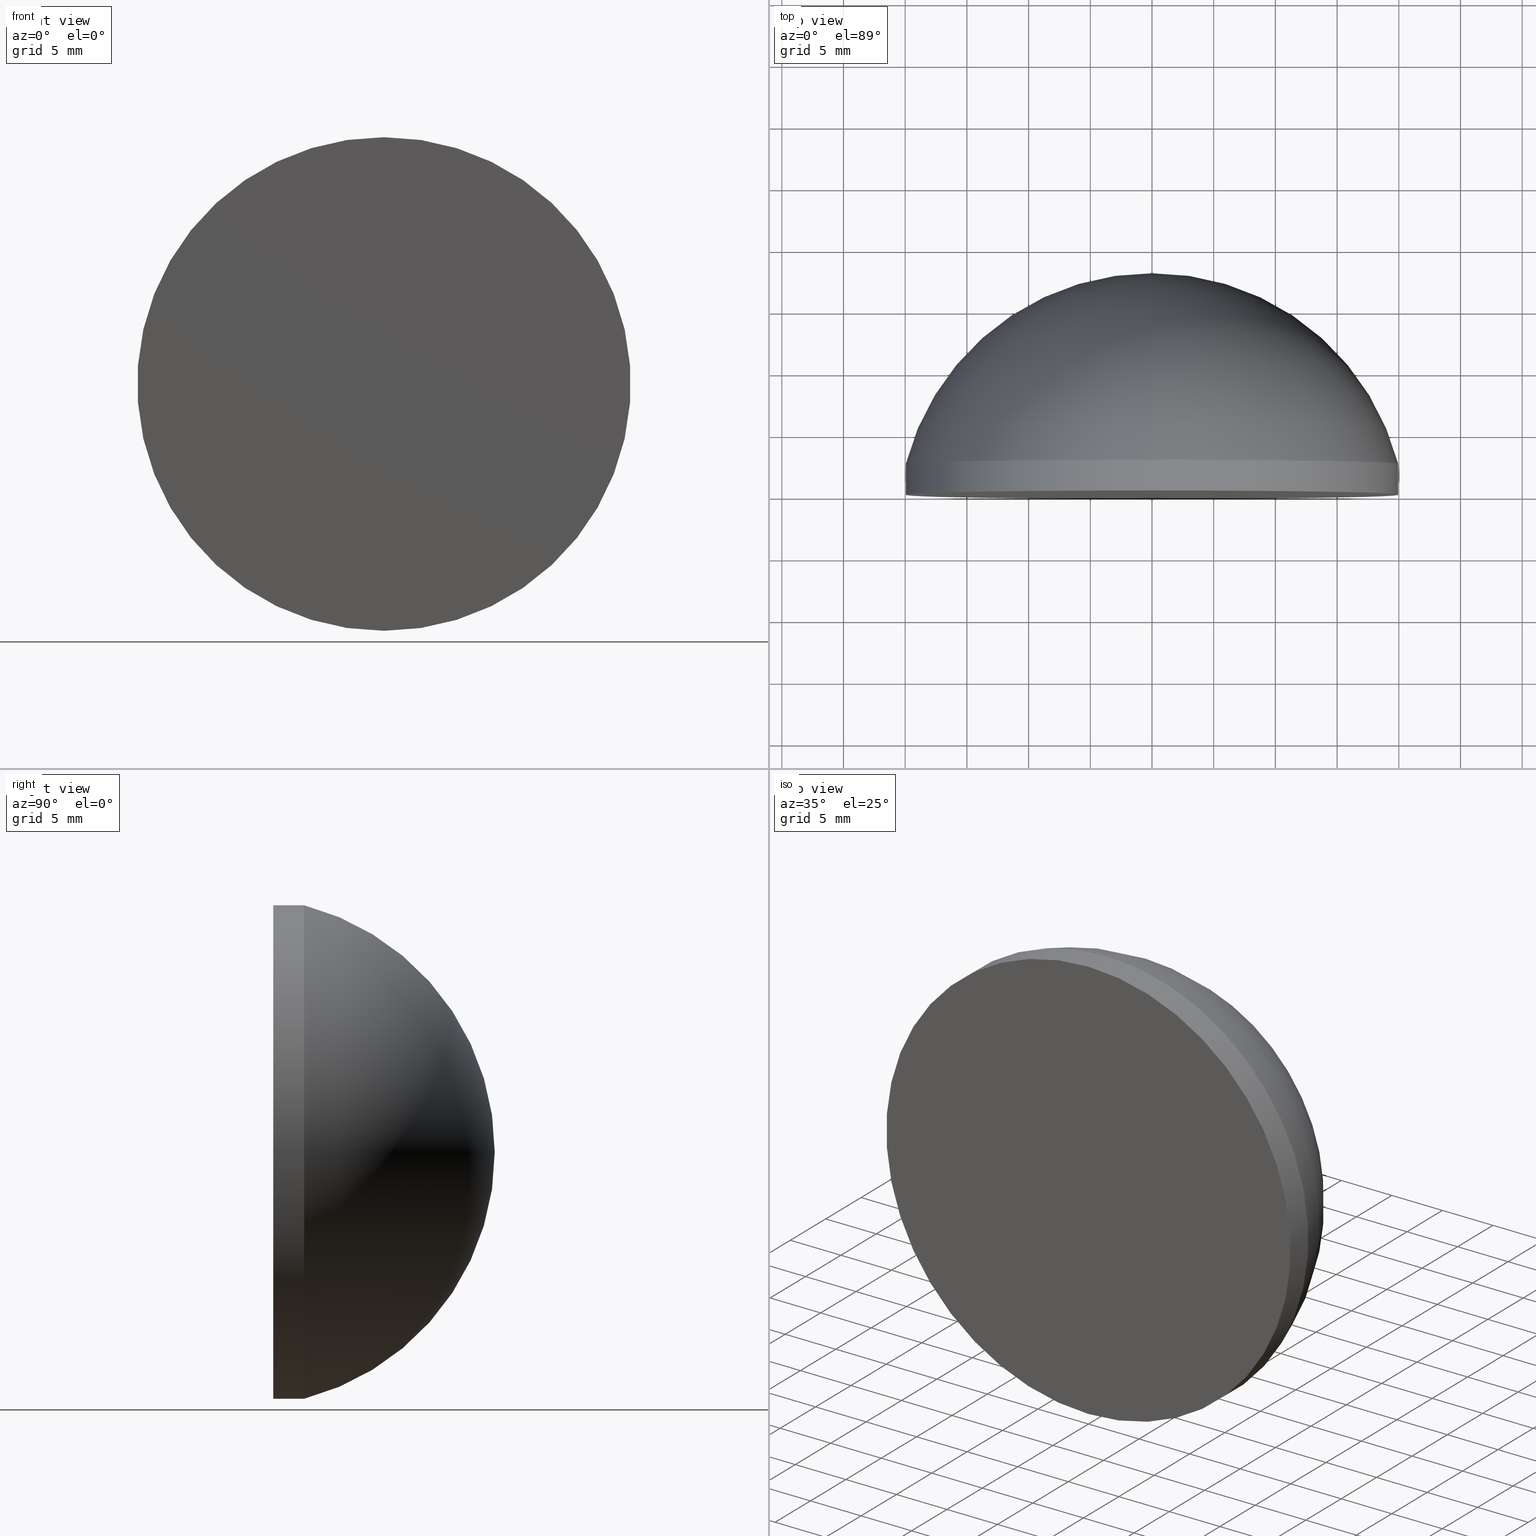
[diagram: canonical four-view strip — front | top / right | iso, engineering-drawing reading convention]
A machine part, canonical four-view strip (front | top / right | iso — engineering-drawing reading convention). The complete STEP part file that produces these views, byte-faithful:
ISO-10303-21;
HEADER;
FILE_DESCRIPTION (( 'STEP AP203' ),
    '1' );
FILE_NAME ('100581.STEP',
    '2024-05-10T01:21:47',
    ( '' ),
    ( '' ),
    'SwSTEP 2.0',
    'SolidWorks 2020',
    '' );
FILE_SCHEMA (( 'CONFIG_CONTROL_DESIGN' ));
ENDSEC;

DATA;
#1 =( NAMED_UNIT ( * ) PLANE_ANGLE_UNIT ( ) SI_UNIT ( $, .RADIAN. ) );
#2 = PERSON_AND_ORGANIZATION_ROLE ( 'design_owner' ) ;
#3 = CALENDAR_DATE ( 2024, 10, 5 ) ;
#4 = ORIENTED_EDGE ( 'NONE', *, *, #84, .F. ) ;
#5 = ORIENTED_EDGE ( 'NONE', *, *, #11, .T. ) ;
#6 = CLOSED_SHELL ( 'NONE', ( #48, #141, #71, #28, #118 ) ) ;
#7 = ORIENTED_EDGE ( 'NONE', *, *, #189, .F. ) ;
#8 = COORDINATED_UNIVERSAL_TIME_OFFSET ( 8, 0, .AHEAD. ) ;
#9 = MANIFOLD_SOLID_BREP ( '��ת1', #6 ) ;
#10 = EDGE_LOOP ( 'NONE', ( #135, #132, #56 ) ) ;
#11 = EDGE_CURVE ( 'NONE', #97, #150, #166, .T. ) ;
#12 = CARTESIAN_POINT ( 'NONE',  ( 0.000000000000000000, -3.469446951953614189E-15, 0.000000000000000000 ) ) ;
#13 = CC_DESIGN_PERSON_AND_ORGANIZATION_ASSIGNMENT ( #74, #196, ( #130 ) ) ;
#14 = DIRECTION ( 'NONE',  ( 0.000000000000000000, 0.000000000000000000, 1.000000000000000000 ) ) ;
#15 = DIRECTION ( 'NONE',  ( 0.000000000000000000, 0.000000000000000000, 1.000000000000000000 ) ) ;
#16 = DIRECTION ( 'NONE',  ( -0.000000000000000000, 1.000000000000000000, -0.000000000000000000 ) ) ;
#17 = LOCAL_TIME ( 9, 21, 47.00000000000000000, #113 ) ;
#18 = FACE_OUTER_BOUND ( 'NONE', #123, .T. ) ;
#19 = PRODUCT_DEFINITION_SHAPE ( 'NONE', 'NONE',  #66 ) ;
#20 = COORDINATED_UNIVERSAL_TIME_OFFSET ( 8, 0, .AHEAD. ) ;
#21 = LOCAL_TIME ( 9, 21, 47.00000000000000000, #67 ) ;
#22 = CARTESIAN_POINT ( 'NONE',  ( 0.000000000000000000, 0.000000000000000000, 0.000000000000000000 ) ) ;
#23 = CC_DESIGN_DATE_AND_TIME_ASSIGNMENT ( #110, #46, ( #75 ) ) ;
#24 = UNCERTAINTY_MEASURE_WITH_UNIT (LENGTH_MEASURE( 1.000000000000000082E-05 ), #152, 'distance_accuracy_value', 'NONE');
#25 = LOCAL_TIME ( 9, 21, 47.00000000000000000, #20 ) ;
#26 = DATE_AND_TIME ( #99, #37 ) ;
#27 = EDGE_CURVE ( 'NONE', #72, #93, #143, .T. ) ;
#28 = ADVANCED_FACE ( 'NONE', ( #198 ), #138, .T. ) ;
#29 = LOCAL_TIME ( 9, 21, 47.00000000000000000, #108 ) ;
#30 = CARTESIAN_POINT ( 'NONE',  ( 0.000000000000000000, 2.499999999999996447, 20.00000000000000355 ) ) ;
#31 = DIRECTION ( 'NONE',  ( -0.000000000000000000, 1.000000000000000000, -0.000000000000000000 ) ) ;
#32 = DIRECTION ( 'NONE',  ( 1.000000000000000000, 0.000000000000000000, 1.224646799147353207E-16 ) ) ;
#33 = APPROVAL_PERSON_ORGANIZATION ( #51, #142, #65 ) ;
#34 = VECTOR ( 'NONE', #61, 1000.000000000000000 ) ;
#35 = PERSON_AND_ORGANIZATION ( #180, #82 ) ;
#36 = DATE_AND_TIME ( #109, #21 ) ;
#37 = LOCAL_TIME ( 9, 21, 47.00000000000000000, #8 ) ;
#38 = PERSON_AND_ORGANIZATION_ROLE ( 'classification_officer' ) ;
#39 = ORIENTED_EDGE ( 'NONE', *, *, #101, .F. ) ;
#40 = APPROVAL_STATUS ( 'not_yet_approved' ) ;
#41 = CC_DESIGN_DATE_AND_TIME_ASSIGNMENT ( #36, #149, ( #66 ) ) ;
#42 = LINE ( 'NONE', #106, #129 ) ;
#43 = CYLINDRICAL_SURFACE ( 'NONE', #161, 20.00000000000000000 ) ;
#44 = DIRECTION ( 'NONE',  ( 0.000000000000000000, -1.000000000000000000, 0.000000000000000000 ) ) ;
#45 = DIRECTION ( 'NONE',  ( 0.000000000000000000, 0.000000000000000000, 1.000000000000000000 ) ) ;
#46 = DATE_TIME_ROLE ( 'classification_date' ) ;
#47 = PRODUCT ( '100581', '100581', '', ( #171 ) ) ;
#48 = ADVANCED_FACE ( 'NONE', ( #153 ), #43, .T. ) ;
#49 = APPROVAL_STATUS ( 'not_yet_approved' ) ;
#50 = DIRECTION ( 'NONE',  ( 1.000000000000000000, 0.000000000000000000, 0.000000000000000000 ) ) ;
#51 = PERSON_AND_ORGANIZATION ( #180, #82 ) ;
#52 = CC_DESIGN_APPROVAL ( #190, ( #66 ) ) ;
#53 = TOROIDAL_SURFACE ( 'NONE', #117, -1.249999708081983574E-05, 20.67000000000000171 ) ;
#54 = PERSON_AND_ORGANIZATION ( #180, #82 ) ;
#55 = CC_DESIGN_PERSON_AND_ORGANIZATION_ASSIGNMENT ( #86, #57, ( #130 ) ) ;
#56 = ORIENTED_EDGE ( 'NONE', *, *, #187, .F. ) ;
#57 = PERSON_AND_ORGANIZATION_ROLE ( 'design_supplier' ) ;
#58 = AXIS2_PLACEMENT_3D ( 'NONE', #122, #165, #168 ) ;
#59 = FACE_OUTER_BOUND ( 'NONE', #10, .T. ) ;
#60 = CARTESIAN_POINT ( 'NONE',  ( 0.000000000000000000, -3.469446951953614189E-15, 20.00000000000000000 ) ) ;
#61 = DIRECTION ( 'NONE',  ( -0.000000000000000000, 1.000000000000000000, -0.000000000000000000 ) ) ;
#62 = AXIS2_PLACEMENT_3D ( 'NONE', #124, #32, #164 ) ;
#63 = CARTESIAN_POINT ( 'NONE',  ( 0.000000000000000000, 17.94999999999999929, 0.000000000000000000 ) ) ;
#64 = DIRECTION ( 'NONE',  ( -0.000000000000000000, 1.000000000000000000, -0.000000000000000000 ) ) ;
#65 = APPROVAL_ROLE ( '' ) ;
#66 = PRODUCT_DEFINITION ( 'δ֪', '', #130, #96 ) ;
#67 = COORDINATED_UNIVERSAL_TIME_OFFSET ( 8, 0, .AHEAD. ) ;
#68 = APPROVAL_ROLE ( '' ) ;
#69 = CC_DESIGN_APPROVAL ( #142, ( #75 ) ) ;
#70 = CALENDAR_DATE ( 2024, 10, 5 ) ;
#71 = ADVANCED_FACE ( 'NONE', ( #104 ), #53, .T. ) ;
#72 = VERTEX_POINT ( 'NONE', #30 ) ;
#73 = ORIENTED_EDGE ( 'NONE', *, *, #187, .T. ) ;
#74 = PERSON_AND_ORGANIZATION ( #180, #82 ) ;
#75 = SECURITY_CLASSIFICATION ( '', '', #98 ) ;
#76 = DIRECTION ( 'NONE',  ( -0.000000000000000000, 1.000000000000000000, -0.000000000000000000 ) ) ;
#77 = CARTESIAN_POINT ( 'NONE',  ( 0.000000000000000000, 17.94999999999999929, 20.00000000000000000 ) ) ;
#78 = CARTESIAN_POINT ( 'NONE',  ( 2.449293598294706513E-15, 2.499999999999996447, -20.00000000000000355 ) ) ;
#79 = CARTESIAN_POINT ( 'NONE',  ( 2.449293598294706513E-15, -3.469446951953614189E-15, -20.00000000000000000 ) ) ;
#80 = PERSON_AND_ORGANIZATION_ROLE ( 'creator' ) ;
#81 = AXIS2_PLACEMENT_3D ( 'NONE', #90, #105, #45 ) ;
#82 = ORGANIZATION ( 'δָ��', 'δָ��', '' ) ;
#83 = AXIS2_PLACEMENT_3D ( 'NONE', #185, #91, #201 ) ;
#84 = EDGE_CURVE ( 'NONE', #93, #182, #147, .T. ) ;
#85 = ORIENTED_EDGE ( 'NONE', *, *, #101, .T. ) ;
#86 = PERSON_AND_ORGANIZATION ( #180, #82 ) ;
#87 = DIRECTION ( 'NONE',  ( 0.000000000000000000, 0.000000000000000000, 1.000000000000000000 ) ) ;
#88 = DIRECTION ( 'NONE',  ( 0.000000000000000000, -0.000000000000000000, -1.000000000000000000 ) ) ;
#89 = AXIS2_PLACEMENT_3D ( 'NONE', #100, #76, #87 ) ;
#90 = CARTESIAN_POINT ( 'NONE',  ( 0.000000000000000000, 17.94999999999999929, 0.000000000000000000 ) ) ;
#91 = DIRECTION ( 'NONE',  ( -0.000000000000000000, 1.000000000000000000, -0.000000000000000000 ) ) ;
#92 = CC_DESIGN_PERSON_AND_ORGANIZATION_ASSIGNMENT ( #35, #2, ( #47 ) ) ;
#93 = VERTEX_POINT ( 'NONE', #78 ) ;
#94 = CC_DESIGN_SECURITY_CLASSIFICATION ( #75, ( #130 ) ) ;
#95 = PERSON_AND_ORGANIZATION ( #180, #82 ) ;
#96 = DESIGN_CONTEXT ( 'detailed design', #176, 'design' ) ;
#97 = VERTEX_POINT ( 'NONE', #60 ) ;
#98 = SECURITY_CLASSIFICATION_LEVEL ( 'unclassified' ) ;
#99 = CALENDAR_DATE ( 2024, 10, 5 ) ;
#100 = CARTESIAN_POINT ( 'NONE',  ( 0.000000000000000000, 2.499999999999996891, 0.000000000000000000 ) ) ;
#101 = EDGE_CURVE ( 'NONE', #150, #97, #177, .T. ) ;
#102 = DIRECTION ( 'NONE',  ( -0.000000000000000000, 1.000000000000000000, -0.000000000000000000 ) ) ;
#103 = AXIS2_PLACEMENT_3D ( 'NONE', #199, #31, #15 ) ;
#104 = FACE_OUTER_BOUND ( 'NONE', #181, .T. ) ;
#105 = DIRECTION ( 'NONE',  ( -0.000000000000000000, 1.000000000000000000, -0.000000000000000000 ) ) ;
#106 = CARTESIAN_POINT ( 'NONE',  ( 2.449293598294706513E-15, 17.94999999999999929, -20.00000000000000000 ) ) ;
#107 = APPLICATION_PROTOCOL_DEFINITION ( 'international standard', 'config_control_design', 1994, #121 ) ;
#108 = COORDINATED_UNIVERSAL_TIME_OFFSET ( 8, 0, .AHEAD. ) ;
#109 = CALENDAR_DATE ( 2024, 10, 5 ) ;
#110 = DATE_AND_TIME ( #70, #17 ) ;
#111 = AXIS2_PLACEMENT_3D ( 'NONE', #12, #64, #200 ) ;
#112 = APPROVAL_PERSON_ORGANIZATION ( #95, #190, #68 ) ;
#113 = COORDINATED_UNIVERSAL_TIME_OFFSET ( 8, 0, .AHEAD. ) ;
#114 = ORIENTED_EDGE ( 'NONE', *, *, #178, .F. ) ;
#115 = ORIENTED_EDGE ( 'NONE', *, *, #27, .F. ) ;
#116 = APPROVAL_PERSON_ORGANIZATION ( #195, #158, #163 ) ;
#117 = AXIS2_PLACEMENT_3D ( 'NONE', #167, #16, #14 ) ;
#118 = ADVANCED_FACE ( 'NONE', ( #18 ), #186, .T. ) ;
#119 = CARTESIAN_POINT ( 'NONE',  ( 0.000000000000000000, 17.94999999999999929, 0.000000000000000000 ) ) ;
#120 = DIRECTION ( 'NONE',  ( -0.000000000000000000, 1.000000000000000000, -0.000000000000000000 ) ) ;
#121 = APPLICATION_CONTEXT ( 'configuration controlled 3d designs of mechanical parts and assemblies' ) ;
#122 = CARTESIAN_POINT ( 'NONE',  ( 0.000000000000000000, -2.719999999996218332, -1.249999708081983574E-05 ) ) ;
#123 = EDGE_LOOP ( 'NONE', ( #194, #85, #133, #7 ) ) ;
#124 = CARTESIAN_POINT ( 'NONE',  ( -1.530808141437727086E-21, -2.719999999996218332, 1.249999708081983574E-05 ) ) ;
#125 = APPROVAL_DATE_TIME ( #173, #142 ) ;
#126 =( GEOMETRIC_REPRESENTATION_CONTEXT ( 3 ) GLOBAL_UNCERTAINTY_ASSIGNED_CONTEXT ( ( #24 ) ) GLOBAL_UNIT_ASSIGNED_CONTEXT ( ( #152, #1, #174 ) ) REPRESENTATION_CONTEXT ( 'NONE', 'WORKASPACE' ) );
#127 = PERSON_AND_ORGANIZATION ( #180, #82 ) ;
#128 = ORIENTED_EDGE ( 'NONE', *, *, #189, .T. ) ;
#129 = VECTOR ( 'NONE', #102, 1000.000000000000000 ) ;
#130 = PRODUCT_DEFINITION_FORMATION_WITH_SPECIFIED_SOURCE ( '�κ�', '', #47, .NOT_KNOWN. ) ;
#131 = ADVANCED_BREP_SHAPE_REPRESENTATION ( '100581', ( #9, #183 ), #126 ) ;
#132 = ORIENTED_EDGE ( 'NONE', *, *, #84, .T. ) ;
#133 = ORIENTED_EDGE ( 'NONE', *, *, #178, .T. ) ;
#134 = APPROVAL_DATE_TIME ( #26, #158 ) ;
#135 = ORIENTED_EDGE ( 'NONE', *, *, #27, .T. ) ;
#136 = CARTESIAN_POINT ( 'NONE',  ( 0.000000000000000000, -1.224646799147353256E-15, 0.000000000000000000 ) ) ;
#137 = CC_DESIGN_APPROVAL ( #158, ( #130 ) ) ;
#138 = PLANE ( 'NONE',  #184 ) ;
#139 = LINE ( 'NONE', #77, #34 ) ;
#140 = CALENDAR_DATE ( 2024, 10, 5 ) ;
#141 = ADVANCED_FACE ( 'NONE', ( #59 ), #192, .T. ) ;
#142 = APPROVAL ( #145, 'δָ��' ) ;
#143 = CIRCLE ( 'NONE', #89, 20.00000000000000000 ) ;
#144 = DIRECTION ( 'NONE',  ( 0.000000000000000000, 0.000000000000000000, 1.000000000000000000 ) ) ;
#145 = APPROVAL_STATUS ( 'not_yet_approved' ) ;
#146 = CIRCLE ( 'NONE', #58, 20.67000000000000171 ) ;
#147 = CIRCLE ( 'NONE', #62, 20.67000000000000171 ) ;
#148 = ORIENTED_EDGE ( 'NONE', *, *, #156, .T. ) ;
#149 = DATE_TIME_ROLE ( 'creation_date' ) ;
#150 = VERTEX_POINT ( 'NONE', #79 ) ;
#151 = PRODUCT_RELATED_PRODUCT_CATEGORY ( 'detail', '', ( #47 ) ) ;
#152 =( LENGTH_UNIT ( ) NAMED_UNIT ( * ) SI_UNIT ( .MILLI., .METRE. ) );
#153 = FACE_OUTER_BOUND ( 'NONE', #162, .T. ) ;
#154 = DIRECTION ( 'NONE',  ( 0.000000000000000000, 0.000000000000000000, 1.000000000000000000 ) ) ;
#155 = DIRECTION ( 'NONE',  ( -0.000000000000000000, 1.000000000000000000, -0.000000000000000000 ) ) ;
#156 = EDGE_CURVE ( 'NONE', #150, #93, #42, .T. ) ;
#157 = APPLICATION_PROTOCOL_DEFINITION ( 'international standard', 'config_control_design', 1994, #176 ) ;
#158 = APPROVAL ( #40, 'δָ��' ) ;
#159 = DATE_AND_TIME ( #140, #25 ) ;
#160 = AXIS2_PLACEMENT_3D ( 'NONE', #169, #120, #154 ) ;
#161 = AXIS2_PLACEMENT_3D ( 'NONE', #119, #155, #197 ) ;
#162 = EDGE_LOOP ( 'NONE', ( #5, #148, #115, #114 ) ) ;
#163 = APPROVAL_ROLE ( '' ) ;
#164 = DIRECTION ( 'NONE',  ( 1.224646799147353207E-16, 0.000000000000000000, -1.000000000000000000 ) ) ;
#165 = DIRECTION ( 'NONE',  ( -1.000000000000000000, 0.000000000000000000, 0.000000000000000000 ) ) ;
#166 = CIRCLE ( 'NONE', #160, 20.00000000000000000 ) ;
#167 = CARTESIAN_POINT ( 'NONE',  ( 0.000000000000000000, -2.719999999996218332, 0.000000000000000000 ) ) ;
#168 = DIRECTION ( 'NONE',  ( 0.000000000000000000, 0.000000000000000000, 1.000000000000000000 ) ) ;
#169 = CARTESIAN_POINT ( 'NONE',  ( 0.000000000000000000, -3.469446951953614189E-15, 0.000000000000000000 ) ) ;
#170 = CC_DESIGN_PERSON_AND_ORGANIZATION_ASSIGNMENT ( #127, #80, ( #66 ) ) ;
#171 = MECHANICAL_CONTEXT ( 'NONE', #121, 'mechanical' ) ;
#172 = CIRCLE ( 'NONE', #83, 20.00000000000000000 ) ;
#173 = DATE_AND_TIME ( #3, #29 ) ;
#174 =( NAMED_UNIT ( * ) SI_UNIT ( $, .STERADIAN. ) SOLID_ANGLE_UNIT ( ) );
#175 = SHAPE_DEFINITION_REPRESENTATION ( #19, #131 ) ;
#176 = APPLICATION_CONTEXT ( 'configuration controlled 3d designs of mechanical parts and assemblies' ) ;
#177 = CIRCLE ( 'NONE', #111, 20.00000000000000000 ) ;
#178 = EDGE_CURVE ( 'NONE', #97, #72, #139, .T. ) ;
#179 = CC_DESIGN_PERSON_AND_ORGANIZATION_ASSIGNMENT ( #54, #38, ( #75 ) ) ;
#180 = PERSON ( 'δָ��', 'δָ��', 'δָ��', ('δָ��'), ('δָ��'), ('δָ��') ) ;
#181 = EDGE_LOOP ( 'NONE', ( #4, #128, #73 ) ) ;
#182 = VERTEX_POINT ( 'NONE', #63 ) ;
#183 = AXIS2_PLACEMENT_3D ( 'NONE', #22, #144, #50 ) ;
#184 = AXIS2_PLACEMENT_3D ( 'NONE', #136, #44, #88 ) ;
#185 = CARTESIAN_POINT ( 'NONE',  ( 0.000000000000000000, 2.499999999999996891, 0.000000000000000000 ) ) ;
#186 = CYLINDRICAL_SURFACE ( 'NONE', #81, 20.00000000000000000 ) ;
#187 = EDGE_CURVE ( 'NONE', #72, #182, #146, .T. ) ;
#188 = APPROVAL_DATE_TIME ( #159, #190 ) ;
#189 = EDGE_CURVE ( 'NONE', #93, #72, #172, .T. ) ;
#190 = APPROVAL ( #49, 'δָ��' ) ;
#191 = EDGE_LOOP ( 'NONE', ( #193, #39 ) ) ;
#192 = TOROIDAL_SURFACE ( 'NONE', #103, -1.249999708081983574E-05, 20.67000000000000171 ) ;
#193 = ORIENTED_EDGE ( 'NONE', *, *, #11, .F. ) ;
#194 = ORIENTED_EDGE ( 'NONE', *, *, #156, .F. ) ;
#195 = PERSON_AND_ORGANIZATION ( #180, #82 ) ;
#196 = PERSON_AND_ORGANIZATION_ROLE ( 'creator' ) ;
#197 = DIRECTION ( 'NONE',  ( 0.000000000000000000, 0.000000000000000000, 1.000000000000000000 ) ) ;
#198 = FACE_OUTER_BOUND ( 'NONE', #191, .T. ) ;
#199 = CARTESIAN_POINT ( 'NONE',  ( 0.000000000000000000, -2.719999999996218332, 0.000000000000000000 ) ) ;
#200 = DIRECTION ( 'NONE',  ( 0.000000000000000000, 0.000000000000000000, 1.000000000000000000 ) ) ;
#201 = DIRECTION ( 'NONE',  ( 0.000000000000000000, 0.000000000000000000, 1.000000000000000000 ) ) ;
ENDSEC;
END-ISO-10303-21;
